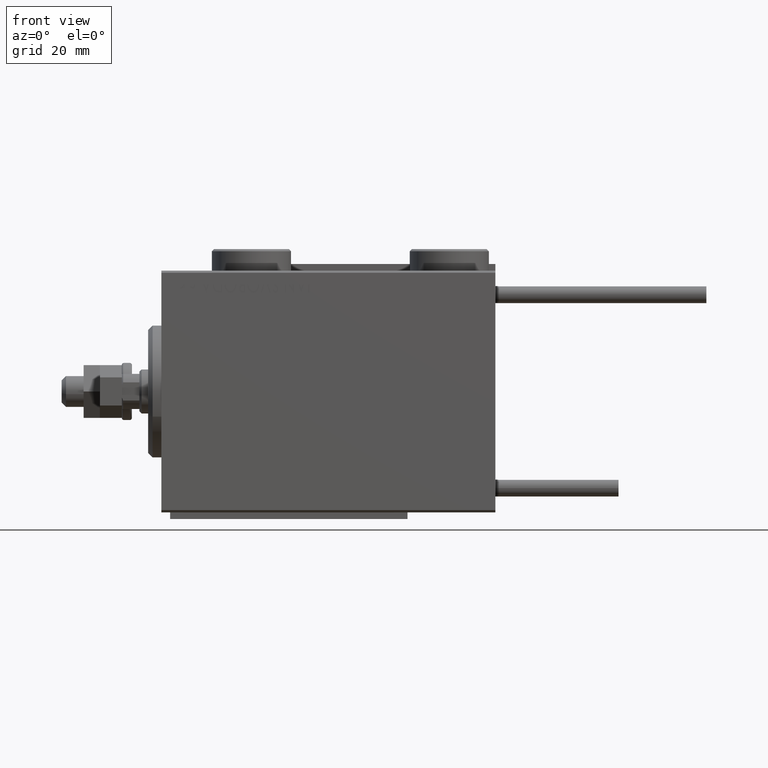
[diagram: clean part render]
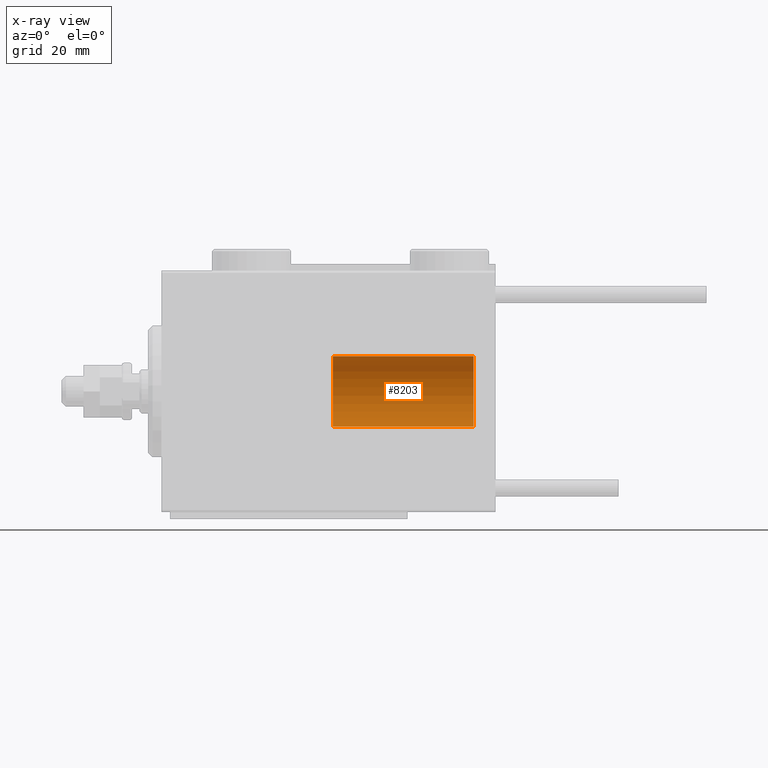
[diagram: x-ray — body ghosted, one internal face saturated and labeled with its STEP entity id]
A machine part, front view, then the same camera in x-ray: the body is ghosted and one INTERNAL B-rep face — a face not visible from any outside direction — is saturated and labeled: STEP entity #8203.
In plain terms, the highlighted cylindrical surface (edge-blend (fillet) strip) has radius 8 mm, axis along (1, -0, -0).
Its self-contained STEP definition (entity closure, byte-faithful):
#696 = CARTESIAN_POINT ( 'NONE',  ( -8.000000000000000000, 0.000000000000000000, 32.00000000000000000 ) ) ;
#1216 = DIRECTION ( 'NONE',  ( 1.000000000000000000, 0.000000000000000000, 0.000000000000000000 ) ) ;
#2486 = DIRECTION ( 'NONE',  ( -1.000000000000000000, 0.000000000000000000, 0.000000000000000000 ) ) ;
#3298 = DIRECTION ( 'NONE',  ( -0.000000000000000000, -0.000000000000000000, -1.000000000000000000 ) ) ;
#4681 = VERTEX_POINT ( 'NONE', #45180 ) ;
#8203 = ADVANCED_FACE ( 'NONE', ( #50981 ), #15240, .T. ) ;
#11479 = EDGE_CURVE ( 'NONE', #24668, #28470, #23623, .T. ) ;
#13177 = EDGE_CURVE ( 'NONE', #28470, #45217, #37512, .T. ) ;
#15002 = AXIS2_PLACEMENT_3D ( 'NONE', #18807, #50627, #30804 ) ;
#15240 = CYLINDRICAL_SURFACE ( 'NONE', #31509, 8.000000000000000000 ) ;
#15561 = EDGE_CURVE ( 'NONE', #4681, #45217, #36941, .T. ) ;
#17374 = CARTESIAN_POINT ( 'NONE',  ( 0.000000000000000000, 0.000000000000000000, 32.00000000000000000 ) ) ;
#17640 = CARTESIAN_POINT ( 'NONE',  ( -8.000000000000000000, 0.000000000000000000, 0.000000000000000000 ) ) ;
#18807 = CARTESIAN_POINT ( 'NONE',  ( 0.000000000000000000, 0.000000000000000000, 0.000000000000000000 ) ) ;
#19315 = CARTESIAN_POINT ( 'NONE',  ( 8.000000000000000000, 9.797174393178825657E-16, 32.00000000000000000 ) ) ;
#22838 = ORIENTED_EDGE ( 'NONE', *, *, #13177, .T. ) ;
#23623 = LINE ( 'NONE', #43696, #44947 ) ;
#23919 = EDGE_CURVE ( 'NONE', #24668, #4681, #38437, .T. ) ;
#24237 = ORIENTED_EDGE ( 'NONE', *, *, #23919, .F. ) ;
#24668 = VERTEX_POINT ( 'NONE', #19315 ) ;
#24681 = DIRECTION ( 'NONE',  ( -0.000000000000000000, -0.000000000000000000, -1.000000000000000000 ) ) ;
#26470 = ORIENTED_EDGE ( 'NONE', *, *, #15561, .F. ) ;
#28470 = VERTEX_POINT ( 'NONE', #37986 ) ;
#29421 = ORIENTED_EDGE ( 'NONE', *, *, #11479, .T. ) ;
#30804 = DIRECTION ( 'NONE',  ( 1.000000000000000000, 0.000000000000000000, 0.000000000000000000 ) ) ;
#30905 = AXIS2_PLACEMENT_3D ( 'NONE', #17374, #49204, #1216 ) ;
#31509 = AXIS2_PLACEMENT_3D ( 'NONE', #38223, #47052, #2486 ) ;
#32635 = VECTOR ( 'NONE', #24681, 1000.000000000000000 ) ;
#36941 = LINE ( 'NONE', #696, #32635 ) ;
#37512 = CIRCLE ( 'NONE', #15002, 8.000000000000000000 ) ;
#37986 = CARTESIAN_POINT ( 'NONE',  ( 8.000000000000000000, 9.797174393178825657E-16, 0.000000000000000000 ) ) ;
#38223 = CARTESIAN_POINT ( 'NONE',  ( 0.000000000000000000, 0.000000000000000000, 32.00000000000000000 ) ) ;
#38437 = CIRCLE ( 'NONE', #30905, 8.000000000000000000 ) ;
#43696 = CARTESIAN_POINT ( 'NONE',  ( 8.000000000000000000, 9.797174393178825657E-16, 32.00000000000000000 ) ) ;
#43888 = EDGE_LOOP ( 'NONE', ( #24237, #29421, #22838, #26470 ) ) ;
#44947 = VECTOR ( 'NONE', #3298, 1000.000000000000000 ) ;
#45180 = CARTESIAN_POINT ( 'NONE',  ( -8.000000000000000000, 0.000000000000000000, 32.00000000000000000 ) ) ;
#45217 = VERTEX_POINT ( 'NONE', #17640 ) ;
#47052 = DIRECTION ( 'NONE',  ( -0.000000000000000000, -0.000000000000000000, -1.000000000000000000 ) ) ;
#49204 = DIRECTION ( 'NONE',  ( 0.000000000000000000, 0.000000000000000000, 1.000000000000000000 ) ) ;
#50627 = DIRECTION ( 'NONE',  ( 0.000000000000000000, 0.000000000000000000, 1.000000000000000000 ) ) ;
#50981 = FACE_OUTER_BOUND ( 'NONE', #43888, .T. ) ;